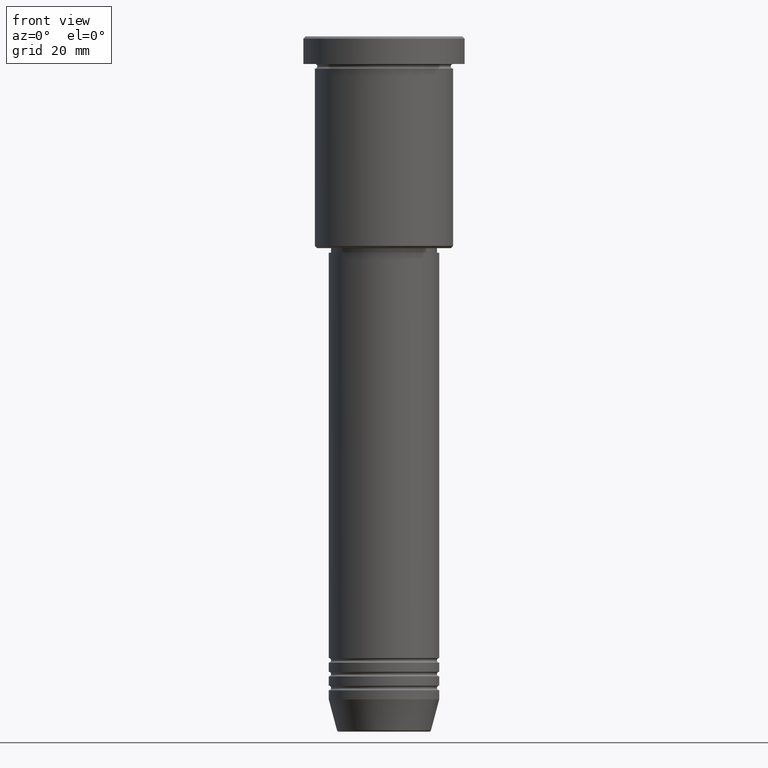
[diagram: clean part render]
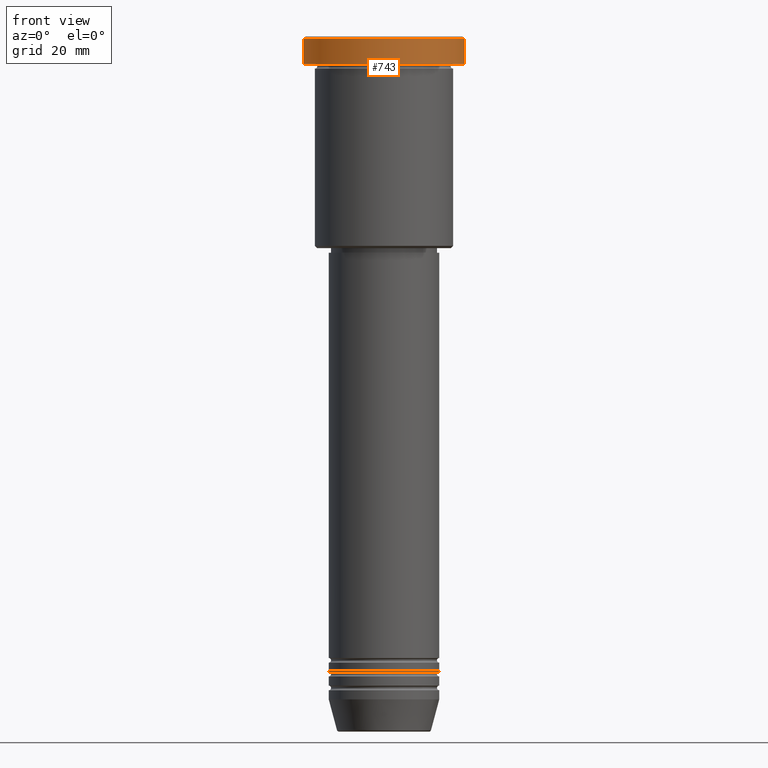
[diagram: same view with one face highlighted and labeled with its STEP entity id]
A machine part, front view. The second image highlights one B-rep face of the part: STEP entity #743.
In plain terms, the highlighted cylindrical surface (partial cylindrical patch) has radius 17.5 mm, axis along (-0, -0, 1).
Its self-contained STEP definition (entity closure, byte-faithful):
#51 = CARTESIAN_POINT ( 'NONE',  ( 0.000000000000000000, 0.000000000000000000, -0.4999999999999866773 ) ) ;
#63 = CARTESIAN_POINT ( 'NONE',  ( -17.50000000000000000, 2.143131898507868248E-15, -5.999999999999995559 ) ) ;
#88 = VECTOR ( 'NONE', #926, 1000.000000000000000 ) ;
#114 = CARTESIAN_POINT ( 'NONE',  ( 17.50000000000000000, 0.000000000000000000, 0.000000000000000000 ) ) ;
#134 = VERTEX_POINT ( 'NONE', #711 ) ;
#153 = ORIENTED_EDGE ( 'NONE', *, *, #405, .F. ) ;
#267 = EDGE_CURVE ( 'NONE', #726, #134, #1115, .T. ) ;
#272 = ORIENTED_EDGE ( 'NONE', *, *, #267, .T. ) ;
#308 = CARTESIAN_POINT ( 'NONE',  ( 17.50000000000000000, 0.000000000000000000, -0.4999999999999866773 ) ) ;
#315 = AXIS2_PLACEMENT_3D ( 'NONE', #51, #1161, #617 ) ;
#344 = ORIENTED_EDGE ( 'NONE', *, *, #657, .T. ) ;
#405 = EDGE_CURVE ( 'NONE', #726, #741, #659, .T. ) ;
#425 = DIRECTION ( 'NONE',  ( -0.000000000000000000, -0.000000000000000000, 1.000000000000000000 ) ) ;
#457 = AXIS2_PLACEMENT_3D ( 'NONE', #870, #678, #1065 ) ;
#477 = CIRCLE ( 'NONE', #315, 17.50000000000000000 ) ;
#515 = CARTESIAN_POINT ( 'NONE',  ( -17.50000000000000000, 2.143131898507868248E-15, -0.4999999999999866773 ) ) ;
#617 = DIRECTION ( 'NONE',  ( 1.000000000000000000, 0.000000000000000000, 0.000000000000000000 ) ) ;
#637 = EDGE_LOOP ( 'NONE', ( #153, #272, #344, #701 ) ) ;
#657 = EDGE_CURVE ( 'NONE', #134, #880, #734, .T. ) ;
#659 = LINE ( 'NONE', #1110, #857 ) ;
#678 = DIRECTION ( 'NONE',  ( -0.000000000000000000, -0.000000000000000000, 1.000000000000000000 ) ) ;
#701 = ORIENTED_EDGE ( 'NONE', *, *, #742, .T. ) ;
#711 = CARTESIAN_POINT ( 'NONE',  ( 17.50000000000000000, 0.000000000000000000, -5.999999999999995559 ) ) ;
#713 = FACE_OUTER_BOUND ( 'NONE', #637, .T. ) ;
#726 = VERTEX_POINT ( 'NONE', #63 ) ;
#734 = LINE ( 'NONE', #114, #88 ) ;
#741 = VERTEX_POINT ( 'NONE', #515 ) ;
#742 = EDGE_CURVE ( 'NONE', #880, #741, #477, .T. ) ;
#743 = ADVANCED_FACE ( 'NONE', ( #713 ), #865, .T. ) ;
#790 = DIRECTION ( 'NONE',  ( 1.000000000000000000, 0.000000000000000000, 0.000000000000000000 ) ) ;
#843 = DIRECTION ( 'NONE',  ( -0.000000000000000000, -0.000000000000000000, 1.000000000000000000 ) ) ;
#857 = VECTOR ( 'NONE', #843, 1000.000000000000000 ) ;
#865 = CYLINDRICAL_SURFACE ( 'NONE', #457, 17.50000000000000000 ) ;
#870 = CARTESIAN_POINT ( 'NONE',  ( 0.000000000000000000, 0.000000000000000000, 0.000000000000000000 ) ) ;
#880 = VERTEX_POINT ( 'NONE', #308 ) ;
#926 = DIRECTION ( 'NONE',  ( -0.000000000000000000, -0.000000000000000000, 1.000000000000000000 ) ) ;
#982 = CARTESIAN_POINT ( 'NONE',  ( 0.000000000000000000, 0.000000000000000000, -5.999999999999995559 ) ) ;
#1065 = DIRECTION ( 'NONE',  ( 1.000000000000000000, 0.000000000000000000, 0.000000000000000000 ) ) ;
#1110 = CARTESIAN_POINT ( 'NONE',  ( -17.50000000000000000, 2.143131898507868248E-15, 0.000000000000000000 ) ) ;
#1113 = AXIS2_PLACEMENT_3D ( 'NONE', #982, #425, #790 ) ;
#1115 = CIRCLE ( 'NONE', #1113, 17.50000000000000000 ) ;
#1161 = DIRECTION ( 'NONE',  ( 0.000000000000000000, 0.000000000000000000, -1.000000000000000000 ) ) ;